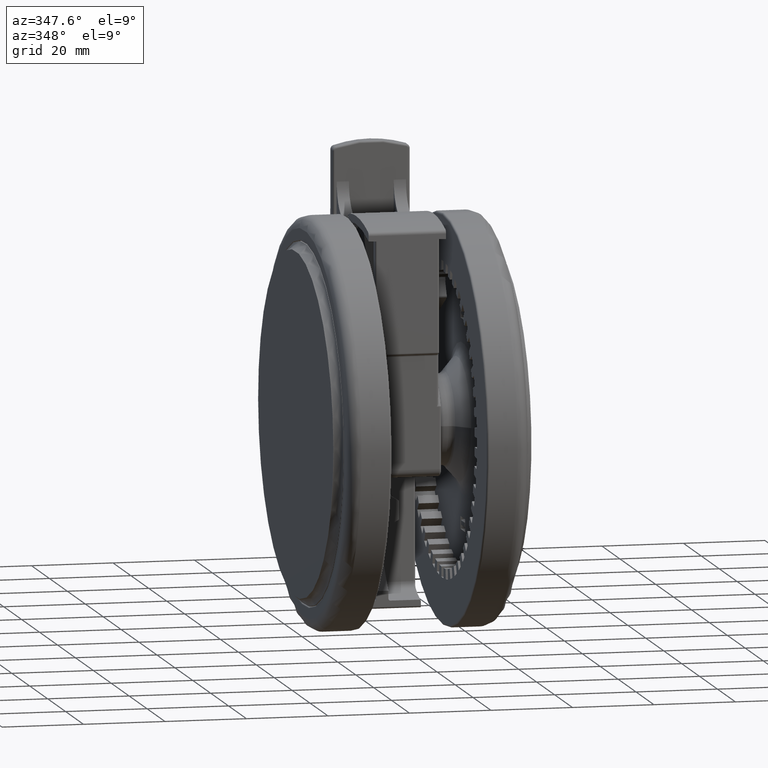
[diagram: clean part render]
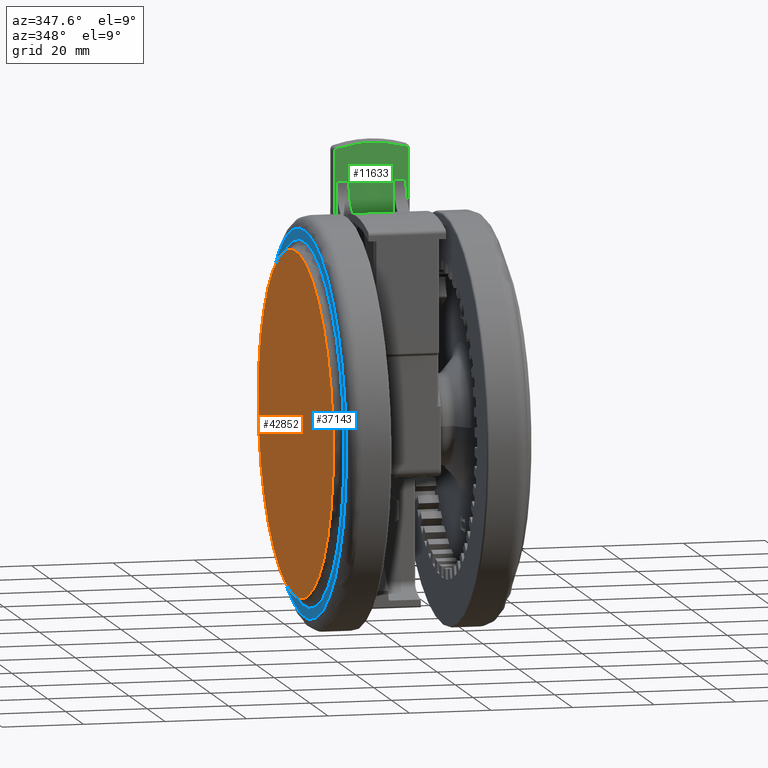
[diagram: same view with three faces highlighted in distinct colors, each labeled with its STEP entity id]
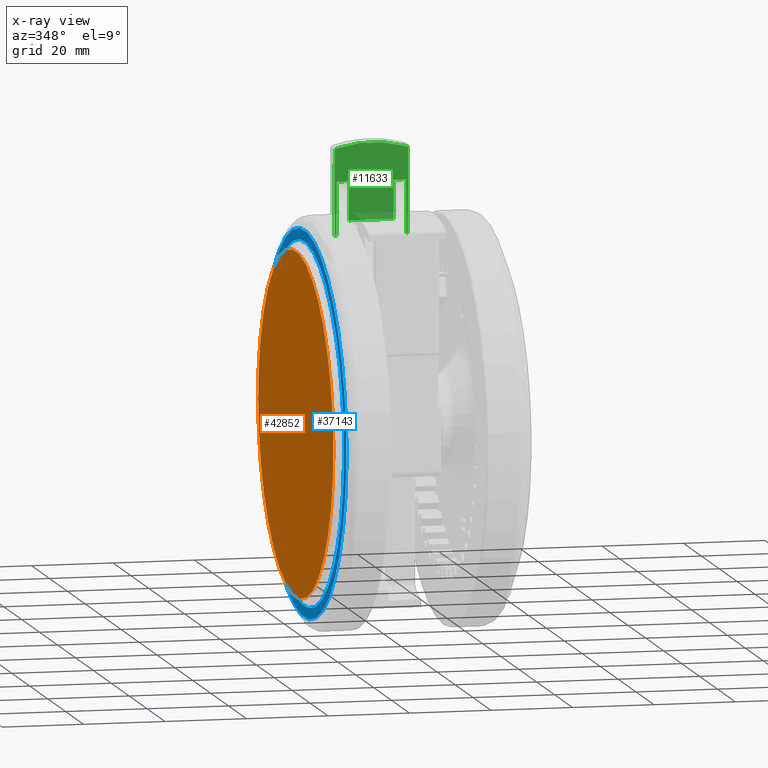
[diagram: x-ray of the same camera — body ghosted, the three highlighted faces saturated]
A machine part, auxiliary view with three faces highlighted in distinct colors.
The next image is the same camera in x-ray (body ghosted, the three faces saturated) — at least one of them is partly hidden behind the body in this view.
Their STEP definitions:

[orange] entity #42852 — the highlighted planar face has unit normal (1, -0, 0).
#310 = EDGE_LOOP ( 'NONE', ( #1982, #19882 ) ) ;
#1982 = ORIENTED_EDGE ( 'NONE', *, *, #4684, .T. ) ;
#4439 = PLANE ( 'NONE',  #27933 ) ;
#4684 = EDGE_CURVE ( 'NONE', #15028, #13028, #25160, .T. ) ;
#7089 = AXIS2_PLACEMENT_3D ( 'NONE', #14624, #41035, #18377 ) ;
#8247 = DIRECTION ( 'NONE',  ( -0.9587657712597810200, 0.2841974592789973700, 1.377383883340829000E-018 ) ) ;
#11170 = CARTESIAN_POINT ( 'NONE',  ( -40.26816239291080300, 11.93629328971787900, -48.59999999999984500 ) ) ;
#13028 = VERTEX_POINT ( 'NONE', #11170 ) ;
#14624 = CARTESIAN_POINT ( 'NONE',  ( 0.0000000000000000000, -7.806255641895631900E-015, -48.59999999999984500 ) ) ;
#15002 = CIRCLE ( 'NONE', #7089, 42.00000000000000000 ) ;
#15028 = VERTEX_POINT ( 'NONE', #47943 ) ;
#17704 = FACE_OUTER_BOUND ( 'NONE', #310, .T. ) ;
#17855 = DIRECTION ( 'NONE',  ( -3.380642383533773200E-017, -2.202247500052102700E-016, -1.000000000000000000 ) ) ;
#18377 = DIRECTION ( 'NONE',  ( 0.9587657712597810200, -0.2841974592789974800, 0.0000000000000000000 ) ) ;
#19882 = ORIENTED_EDGE ( 'NONE', *, *, #20337, .T. ) ;
#20337 = EDGE_CURVE ( 'NONE', #13028, #15028, #15002, .T. ) ;
#24534 = AXIS2_PLACEMENT_3D ( 'NONE', #40489, #17855, #44273 ) ;
#25160 = CIRCLE ( 'NONE', #24534, 42.00000000000000000 ) ;
#27094 = CARTESIAN_POINT ( 'NONE',  ( 0.0000000000000000000, -7.806255641895631900E-015, -48.59999999999984500 ) ) ;
#27933 = AXIS2_PLACEMENT_3D ( 'NONE', #27094, #30880, #8247 ) ;
#30880 = DIRECTION ( 'NONE',  ( 6.405764716563957100E-017, 2.112576789350188500E-016, 1.000000000000000000 ) ) ;
#40489 = CARTESIAN_POINT ( 'NONE',  ( 0.0000000000000000000, -7.806255641895631900E-015, -48.59999999999984500 ) ) ;
#41035 = DIRECTION ( 'NONE',  ( -3.380642383533773200E-017, -2.202247500052102700E-016, -1.000000000000000000 ) ) ;
#42852 = ADVANCED_FACE ( 'NONE', ( #17704 ), #4439, .F. ) ;
#44273 = DIRECTION ( 'NONE',  ( 0.9587657712597810200, -0.2841974592789974800, 0.0000000000000000000 ) ) ;
#47943 = CARTESIAN_POINT ( 'NONE',  ( 40.26816239291080300, -11.93629328971789700, -48.59999999999984500 ) ) ;

[blue] entity #37143 — the highlighted planar face has unit normal (1, -0, 0).
#651 = CARTESIAN_POINT ( 'NONE',  ( -42.47332366680828400, 12.58994744605957400, -46.49999999999995700 ) ) ;
#2221 = DIRECTION ( 'NONE',  ( -0.9587657712597810200, 0.2841974592789973700, 1.377383883340825900E-018 ) ) ;
#4530 = CARTESIAN_POINT ( 'NONE',  ( 42.47332366680831200, -12.58994744605959700, -46.49999999999995700 ) ) ;
#4767 = CIRCLE ( 'NONE', #34453, 47.00000000000000700 ) ;
#4793 = CIRCLE ( 'NONE', #8112, 44.29999999999999700 ) ;
#5154 = VERTEX_POINT ( 'NONE', #651 ) ;
#6505 = AXIS2_PLACEMENT_3D ( 'NONE', #21018, #24845, #2221 ) ;
#6650 = FACE_OUTER_BOUND ( 'NONE', #38800, .T. ) ;
#8112 = AXIS2_PLACEMENT_3D ( 'NONE', #12759, #39168, #16561 ) ;
#9253 = CARTESIAN_POINT ( 'NONE',  ( 1.387778780781445700E-014, -8.673617379884035500E-015, -46.49999999999994300 ) ) ;
#10129 = DIRECTION ( 'NONE',  ( -3.380642383533773200E-017, -2.202247500052102700E-016, -1.000000000000000000 ) ) ;
#11363 = AXIS2_PLACEMENT_3D ( 'NONE', #21093, #47538, #24919 ) ;
#12702 = VERTEX_POINT ( 'NONE', #16645 ) ;
#12759 = CARTESIAN_POINT ( 'NONE',  ( 1.387778780781445700E-014, -8.673617379884035500E-015, -46.49999999999994300 ) ) ;
#13058 = DIRECTION ( 'NONE',  ( -0.9587657712597810200, 0.2841974592789973700, 0.0000000000000000000 ) ) ;
#16561 = DIRECTION ( 'NONE',  ( -0.9587657712597810200, 0.2841974592789973700, 0.0000000000000000000 ) ) ;
#16645 = CARTESIAN_POINT ( 'NONE',  ( 45.06199124920972600, -13.35728058611288900, -46.50000000000000000 ) ) ;
#17230 = PLANE ( 'NONE',  #6505 ) ;
#21018 = CARTESIAN_POINT ( 'NONE',  ( -12.50468820827586900, -42.18569393543036500, -46.49999999999993600 ) ) ;
#21093 = CARTESIAN_POINT ( 'NONE',  ( 1.387778780781445700E-014, -8.673617379884035500E-015, -46.49999999999994300 ) ) ;
#22555 = EDGE_LOOP ( 'NONE', ( #43188, #35592 ) ) ;
#23064 = ORIENTED_EDGE ( 'NONE', *, *, #23349, .T. ) ;
#23349 = EDGE_CURVE ( 'NONE', #12702, #23682, #31263, .T. ) ;
#23682 = VERTEX_POINT ( 'NONE', #34957 ) ;
#24845 = DIRECTION ( 'NONE',  ( 6.405764716563957100E-017, 2.112576789350188500E-016, 1.000000000000000000 ) ) ;
#24919 = DIRECTION ( 'NONE',  ( -0.9587657712597809100, 0.2841974592789973100, 0.0000000000000000000 ) ) ;
#27427 = VERTEX_POINT ( 'NONE', #4530 ) ;
#29376 = EDGE_CURVE ( 'NONE', #27427, #5154, #4793, .T. ) ;
#31263 = CIRCLE ( 'NONE', #11363, 47.00000000000000700 ) ;
#32739 = CARTESIAN_POINT ( 'NONE',  ( 1.387778780781445700E-014, -8.673617379884035500E-015, -46.49999999999994300 ) ) ;
#34453 = AXIS2_PLACEMENT_3D ( 'NONE', #32739, #10129, #36548 ) ;
#34589 = ORIENTED_EDGE ( 'NONE', *, *, #39098, .T. ) ;
#34957 = CARTESIAN_POINT ( 'NONE',  ( -45.06199124920969700, 13.35728058611286800, -46.50000000000000000 ) ) ;
#35592 = ORIENTED_EDGE ( 'NONE', *, *, #29376, .T. ) ;
#35684 = DIRECTION ( 'NONE',  ( 3.380642383533773200E-017, 2.202247500052102700E-016, 1.000000000000000000 ) ) ;
#36449 = CIRCLE ( 'NONE', #40351, 44.29999999999999700 ) ;
#36548 = DIRECTION ( 'NONE',  ( -0.9587657712597809100, 0.2841974592789973100, 0.0000000000000000000 ) ) ;
#37143 = ADVANCED_FACE ( 'NONE', ( #6650, #45667 ), #17230, .F. ) ;
#38800 = EDGE_LOOP ( 'NONE', ( #34589, #23064 ) ) ;
#39098 = EDGE_CURVE ( 'NONE', #23682, #12702, #4767, .T. ) ;
#39168 = DIRECTION ( 'NONE',  ( 3.380642383533773200E-017, 2.202247500052102700E-016, 1.000000000000000000 ) ) ;
#40351 = AXIS2_PLACEMENT_3D ( 'NONE', #9253, #35684, #13058 ) ;
#43188 = ORIENTED_EDGE ( 'NONE', *, *, #45485, .T. ) ;
#45485 = EDGE_CURVE ( 'NONE', #5154, #27427, #36449, .T. ) ;
#45667 = FACE_BOUND ( 'NONE', #22555, .T. ) ;
#47538 = DIRECTION ( 'NONE',  ( -3.380642383533773200E-017, -2.202247500052102700E-016, -1.000000000000000000 ) ) ;

[green] entity #11633 — the highlighted planar face has unit normal (0, 1, 0.0074).
#153 = DIRECTION ( 'NONE',  ( -0.9999723456906809400, -0.007436925028332594600, 2.176034244634824300E-017 ) ) ;
#319 = CARTESIAN_POINT ( 'NONE',  ( 54.23730858570593900, -26.16395366968067300, -18.79999999999995500 ) ) ;
#657 = EDGE_CURVE ( 'NONE', #3729, #10843, #36176, .T. ) ;
#1074 = ORIENTED_EDGE ( 'NONE', *, *, #19640, .T. ) ;
#1425 = CARTESIAN_POINT ( 'NONE',  ( 44.70098897598083500, -26.23487652498699100, -18.79999999999995500 ) ) ;
#1772 = ORIENTED_EDGE ( 'NONE', *, *, #657, .T. ) ;
#2539 = DIRECTION ( 'NONE',  ( 2.126349141558171200E-017, 1.779100357716780700E-016, 1.000000000000000000 ) ) ;
#3241 = PLANE ( 'NONE',  #22279 ) ;
#3729 = VERTEX_POINT ( 'NONE', #34319 ) ;
#3832 = FACE_OUTER_BOUND ( 'NONE', #23134, .T. ) ;
#3951 = DIRECTION ( 'NONE',  ( 2.126349141558171200E-017, 1.779100357716780700E-016, 1.000000000000000000 ) ) ;
#4135 = ORIENTED_EDGE ( 'NONE', *, *, #32089, .T. ) ;
#4946 = VECTOR ( 'NONE', #37629, 1000.000000000000100 ) ;
#5063 = ORIENTED_EDGE ( 'NONE', *, *, #39836, .T. ) ;
#5214 = VERTEX_POINT ( 'NONE', #27566 ) ;
#5891 = EDGE_CURVE ( 'NONE', #39396, #3729, #15595, .T. ) ;
#5984 = ORIENTED_EDGE ( 'NONE', *, *, #9736, .F. ) ;
#6366 = VERTEX_POINT ( 'NONE', #1425 ) ;
#6696 = VERTEX_POINT ( 'NONE', #22345 ) ;
#7342 = DIRECTION ( 'NONE',  ( -0.9999723456906809400, -0.007436925028332097600, 2.176034244634821500E-017 ) ) ;
#7927 = CARTESIAN_POINT ( 'NONE',  ( 61.77685800758094100, -26.10788105523336000, -32.79999999999995500 ) ) ;
#8488 = VERTEX_POINT ( 'NONE', #37865 ) ;
#8821 = AXIS2_PLACEMENT_3D ( 'NONE', #7927, #34336, #11714 ) ;
#9736 = EDGE_CURVE ( 'NONE', #6696, #23098, #29959, .T. ) ;
#9929 = DIRECTION ( 'NONE',  ( 0.9999723456906809400, 0.007436925028332594600, -2.176034244634824300E-017 ) ) ;
#10183 = DIRECTION ( 'NONE',  ( -2.126349141558171200E-017, -1.779100357716780700E-016, -1.000000000000000000 ) ) ;
#10616 = CARTESIAN_POINT ( 'NONE',  ( 54.23730858570593900, -26.16395366968067600, -32.79999999999995500 ) ) ;
#10735 = CARTESIAN_POINT ( 'NONE',  ( 41.17683676159110500, -26.26108610560169500, -33.29999999999995500 ) ) ;
#10843 = VERTEX_POINT ( 'NONE', #27620 ) ;
#10871 = ORIENTED_EDGE ( 'NONE', *, *, #15893, .T. ) ;
#10887 = ORIENTED_EDGE ( 'NONE', *, *, #17906, .T. ) ;
#10950 = VECTOR ( 'NONE', #153, 1000.000000000000100 ) ;
#11205 = CARTESIAN_POINT ( 'NONE',  ( 39.60099525168819000, -26.27280584486866000, -18.79999999999995500 ) ) ;
#11389 = CARTESIAN_POINT ( 'NONE',  ( 41.17683676159110500, -26.26108610560169500, -33.79999999999995500 ) ) ;
#11633 = ADVANCED_FACE ( 'NONE', ( #3832 ), #3241, .F. ) ;
#11714 = DIRECTION ( 'NONE',  ( -0.9999723456906810500, -0.007436925028331226700, -1.387778780781438600E-014 ) ) ;
#11736 = DIRECTION ( 'NONE',  ( -0.007436925028332595400, 0.9999723456906810500, -6.672774858359753300E-017 ) ) ;
#11800 = CIRCLE ( 'NONE', #8821, 0.5000000000000025500 ) ;
#12039 = ORIENTED_EDGE ( 'NONE', *, *, #40328, .T. ) ;
#12509 = LINE ( 'NONE', #25162, #21352 ) ;
#12921 = CIRCLE ( 'NONE', #14557, 29.50000000000000400 ) ;
#13737 = CARTESIAN_POINT ( 'NONE',  ( 61.77685800758094100, -26.10788105523335600, -15.29999999999995500 ) ) ;
#14436 = DIRECTION ( 'NONE',  ( 2.126349141558171200E-017, 1.779100357716780700E-016, 1.000000000000000000 ) ) ;
#14557 = AXIS2_PLACEMENT_3D ( 'NONE', #15133, #41536, #18899 ) ;
#15133 = CARTESIAN_POINT ( 'NONE',  ( 34.05128349437505600, -26.31407977653873000, -24.29999999999995500 ) ) ;
#15303 = ORIENTED_EDGE ( 'NONE', *, *, #45718, .T. ) ;
#15595 = LINE ( 'NONE', #17316, #36855 ) ;
#15893 = EDGE_CURVE ( 'NONE', #26742, #24550, #18602, .T. ) ;
#16094 = VECTOR ( 'NONE', #9929, 1000.000000000000100 ) ;
#17316 = CARTESIAN_POINT ( 'NONE',  ( 41.17683676159110500, -26.26108610560169500, -33.79999999999995500 ) ) ;
#17906 = EDGE_CURVE ( 'NONE', #23909, #6366, #12509, .T. ) ;
#18602 = LINE ( 'NONE', #22747, #10950 ) ;
#18899 = DIRECTION ( 'NONE',  ( -0.9999723456906810500, -0.007436925028332557300, 0.0000000000000000000 ) ) ;
#19515 = CARTESIAN_POINT ( 'NONE',  ( 54.23730858570593900, -26.16395366968066900, -15.79999999999995300 ) ) ;
#19640 = EDGE_CURVE ( 'NONE', #6696, #5214, #39507, .T. ) ;
#20278 = EDGE_CURVE ( 'NONE', #30365, #6366, #25052, .T. ) ;
#21352 = VECTOR ( 'NONE', #2539, 1000.000000000000000 ) ;
#22211 = DIRECTION ( 'NONE',  ( 0.007436925028332595400, -0.9999723456906810500, 6.672774858359754500E-017 ) ) ;
#22279 = AXIS2_PLACEMENT_3D ( 'NONE', #33460, #22211, #48617 ) ;
#22345 = CARTESIAN_POINT ( 'NONE',  ( 54.23730858570593900, -26.16395366968067600, -32.79999999999995500 ) ) ;
#22747 = CARTESIAN_POINT ( 'NONE',  ( 64.05045386509547700, -26.09097202568876400, -33.29999999999995500 ) ) ;
#23098 = VERTEX_POINT ( 'NONE', #38471 ) ;
#23134 = EDGE_LOOP ( 'NONE', ( #31790, #10887, #40130, #28652, #40345, #30016, #1772, #15303, #12039, #5063, #10871, #4135, #5984, #1074 ) ) ;
#23543 = DIRECTION ( 'NONE',  ( -0.9999723456906809400, -0.007436925028332097600, 2.176034244634821500E-017 ) ) ;
#23909 = VERTEX_POINT ( 'NONE', #25197 ) ;
#24054 = VERTEX_POINT ( 'NONE', #37708 ) ;
#24147 = VERTEX_POINT ( 'NONE', #19515 ) ;
#24550 = VERTEX_POINT ( 'NONE', #10735 ) ;
#25052 = LINE ( 'NONE', #11205, #4946 ) ;
#25162 = CARTESIAN_POINT ( 'NONE',  ( 44.70098897598083500, -26.23487652498699400, -18.79999999999995500 ) ) ;
#25197 = CARTESIAN_POINT ( 'NONE',  ( 44.70098897598083500, -26.23487652498699400, -29.79999999999995100 ) ) ;
#25384 = CARTESIAN_POINT ( 'NONE',  ( 54.23730858570593900, -26.16395366968066900, -15.79999999999995300 ) ) ;
#26742 = VERTEX_POINT ( 'NONE', #48657 ) ;
#27566 = CARTESIAN_POINT ( 'NONE',  ( 54.23730858570593900, -26.16395366968067600, -29.79999999999995100 ) ) ;
#27620 = CARTESIAN_POINT ( 'NONE',  ( 61.77685800758094100, -26.10788105523335300, -15.29999999999995500 ) ) ;
#28652 = ORIENTED_EDGE ( 'NONE', *, *, #38542, .F. ) ;
#29491 = VECTOR ( 'NONE', #14436, 1000.000000000000000 ) ;
#29959 = LINE ( 'NONE', #46166, #48813 ) ;
#29978 = CARTESIAN_POINT ( 'NONE',  ( 39.60099525168819000, -26.27280584486866400, -29.79999999999995100 ) ) ;
#30016 = ORIENTED_EDGE ( 'NONE', *, *, #5891, .T. ) ;
#30365 = VERTEX_POINT ( 'NONE', #319 ) ;
#30855 = VECTOR ( 'NONE', #10183, 1000.000000000000000 ) ;
#31709 = VECTOR ( 'NONE', #3951, 1000.000000000000000 ) ;
#31790 = ORIENTED_EDGE ( 'NONE', *, *, #48356, .T. ) ;
#32089 = EDGE_CURVE ( 'NONE', #24550, #23098, #40574, .T. ) ;
#33192 = CARTESIAN_POINT ( 'NONE',  ( 39.60099525168819000, -26.27280584486866000, -15.79999999999995300 ) ) ;
#33460 = CARTESIAN_POINT ( 'NONE',  ( 64.05045386509547700, -26.09097202568876400, -33.79999999999995500 ) ) ;
#34319 = CARTESIAN_POINT ( 'NONE',  ( 41.17683676159110500, -26.26108610560169200, -15.29999999999995500 ) ) ;
#34336 = DIRECTION ( 'NONE',  ( -0.007436925028332595400, 0.9999723456906810500, -6.672774858359753300E-017 ) ) ;
#34358 = CARTESIAN_POINT ( 'NONE',  ( 61.77685800758094100, -26.10788105523335600, -15.79999999999995300 ) ) ;
#34856 = VECTOR ( 'NONE', #36834, 1000.000000000000100 ) ;
#34906 = CARTESIAN_POINT ( 'NONE',  ( 41.17683676159111200, -26.26108610560168400, -15.79999999999995300 ) ) ;
#36028 = LINE ( 'NONE', #33192, #34856 ) ;
#36176 = LINE ( 'NONE', #13737, #16094 ) ;
#36834 = DIRECTION ( 'NONE',  ( -0.9999723456906809400, -0.007436925028332097600, 2.176034244634821500E-017 ) ) ;
#36855 = VECTOR ( 'NONE', #43736, 1000.000000000000000 ) ;
#37427 = VECTOR ( 'NONE', #7342, 1000.000000000000100 ) ;
#37629 = DIRECTION ( 'NONE',  ( -0.9999723456906809400, -0.007436925028332097600, 2.176034244634821500E-017 ) ) ;
#37708 = CARTESIAN_POINT ( 'NONE',  ( 62.25488515436038000, -26.10432590486603000, -15.65344827586202400 ) ) ;
#37865 = CARTESIAN_POINT ( 'NONE',  ( 62.25488515436033800, -26.10432590486602000, -32.94655172413787600 ) ) ;
#38151 = DIRECTION ( 'NONE',  ( -0.9999723456906810500, -0.007436925028331226700, -6.938893903907192900E-015 ) ) ;
#38471 = CARTESIAN_POINT ( 'NONE',  ( 41.17683676159111200, -26.26108610560168800, -32.79999999999995500 ) ) ;
#38506 = LINE ( 'NONE', #25384, #30855 ) ;
#38542 = EDGE_CURVE ( 'NONE', #24147, #30365, #38506, .T. ) ;
#38602 = LINE ( 'NONE', #29978, #37427 ) ;
#39396 = VERTEX_POINT ( 'NONE', #34906 ) ;
#39399 = AXIS2_PLACEMENT_3D ( 'NONE', #34358, #11736, #38151 ) ;
#39507 = LINE ( 'NONE', #10616, #29491 ) ;
#39836 = EDGE_CURVE ( 'NONE', #8488, #26742, #11800, .T. ) ;
#40130 = ORIENTED_EDGE ( 'NONE', *, *, #20278, .F. ) ;
#40328 = EDGE_CURVE ( 'NONE', #24054, #8488, #12921, .T. ) ;
#40345 = ORIENTED_EDGE ( 'NONE', *, *, #43823, .T. ) ;
#40574 = LINE ( 'NONE', #11389, #31709 ) ;
#41536 = DIRECTION ( 'NONE',  ( -0.007436925028332595400, 0.9999723456906810500, -6.672774858359753300E-017 ) ) ;
#43736 = DIRECTION ( 'NONE',  ( 2.126349141558171200E-017, 1.779100357716780700E-016, 1.000000000000000000 ) ) ;
#43823 = EDGE_CURVE ( 'NONE', #24147, #39396, #36028, .T. ) ;
#44672 = CIRCLE ( 'NONE', #39399, 0.5000000000000025500 ) ;
#45718 = EDGE_CURVE ( 'NONE', #10843, #24054, #44672, .T. ) ;
#46166 = CARTESIAN_POINT ( 'NONE',  ( 39.60099525168819000, -26.27280584486866400, -32.79999999999995500 ) ) ;
#48356 = EDGE_CURVE ( 'NONE', #5214, #23909, #38602, .T. ) ;
#48617 = DIRECTION ( 'NONE',  ( -0.9999723456906809400, -0.007436925028332594600, 2.176034244634824600E-017 ) ) ;
#48657 = CARTESIAN_POINT ( 'NONE',  ( 61.77685800758094100, -26.10788105523336000, -33.29999999999995500 ) ) ;
#48813 = VECTOR ( 'NONE', #23543, 1000.000000000000100 ) ;